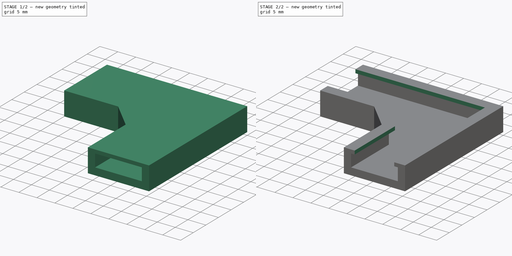
[diagram: build sequence overview — one tinted view per stage of 2, left to right]
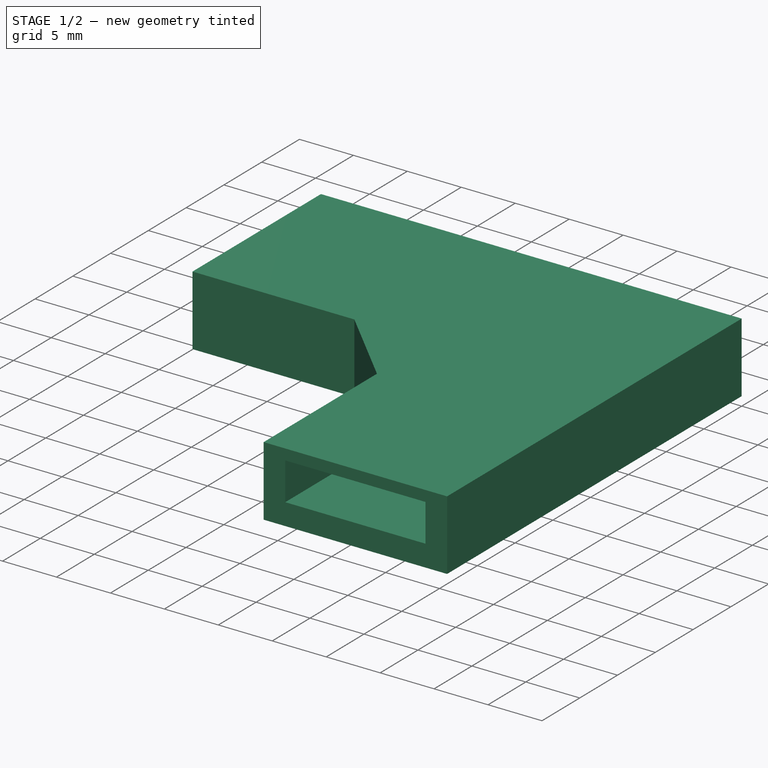
[diagram: stage 1 of 2 — iso view after this stage's code; geometry added in this stage tinted green]
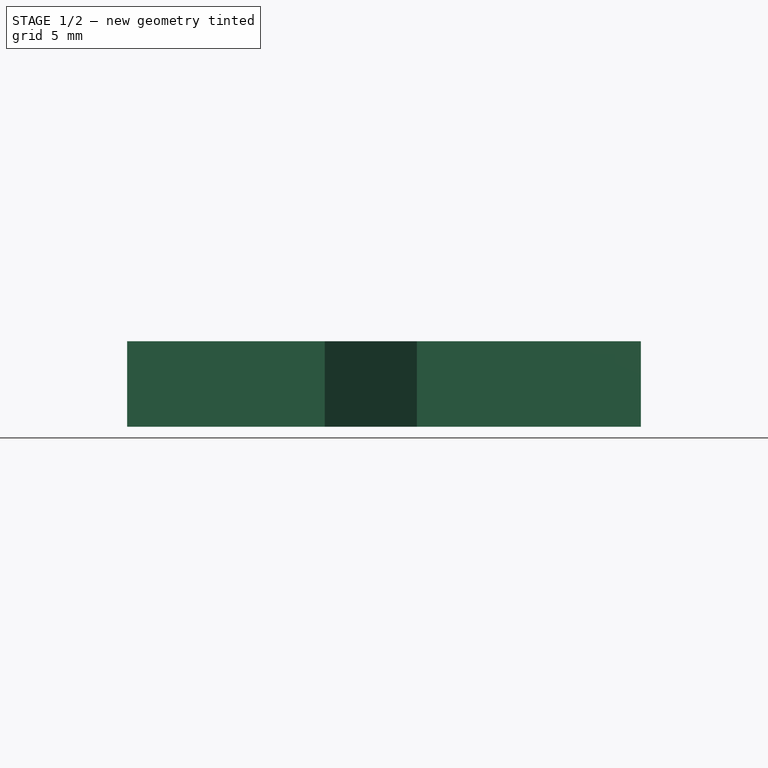
[diagram: stage 1 of 2 — front view after this stage's code; geometry added in this stage tinted green]
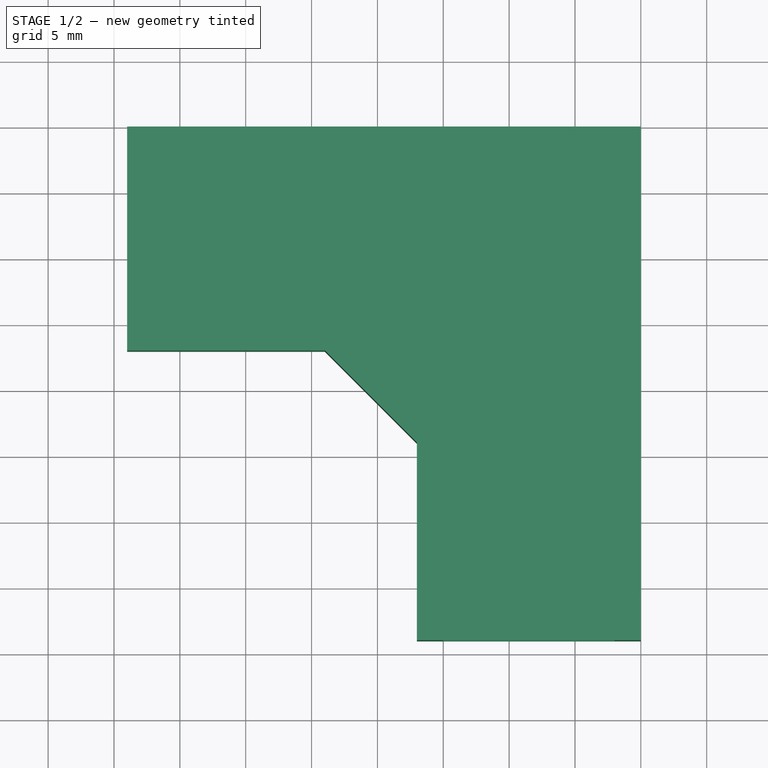
[diagram: stage 1 of 2 — top view after this stage's code; geometry added in this stage tinted green]
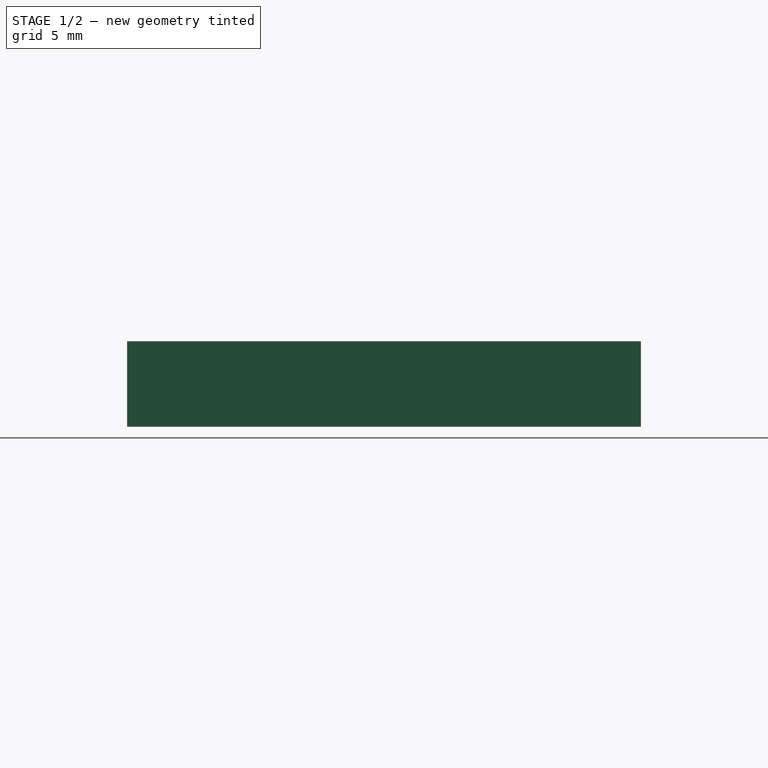
[diagram: stage 1 of 2 — right view after this stage's code; geometry added in this stage tinted green]
FCSTD DOCUMENT  (FreeCAD 0.20R29603 (Git))
Label: rozek
License: All rights reserved
LicenseURL: http://en.wikipedia.org/wiki/All_rights_reserved
objects: Sketcher::SketchObject×3, PartDesign::Pocket×2, App::Part×1, PartDesign::Pad×1, PartDesign::Body×1
note: 10 computed .brp shape members not serialized (recipe doc carries the construction recipe); baked Part::Feature solids carry a one-line shape summary decoded from their .brp

FEATURE [App::Part] Part
  Origin = -> Origin
  Placement = pos=(-2,-5,0) rot=(0,0,1;0rad)
FEATURE [Sketcher::SketchObject] Sketch
  FullyConstrained = true
  sketch-geometry (7):
    g0: LineSegment StartX=0 StartY=0 StartZ=0 EndX=0 EndY=-39 EndZ=0
    g1: LineSegment StartX=0 StartY=-39 StartZ=0 EndX=-17 EndY=-39 EndZ=0
    g2: LineSegment StartX=0 StartY=0 StartZ=0 EndX=-39 EndY=0 EndZ=0
    g3: LineSegment StartX=-39 StartY=0 StartZ=0 EndX=-39 EndY=-17 EndZ=0
    g4: LineSegment StartX=-24 StartY=-17 StartZ=0 EndX=-17 EndY=-24 EndZ=0
    g5: LineSegment StartX=-17 StartY=-39 StartZ=0 EndX=-17 EndY=-24 EndZ=0
    g6: LineSegment StartX=-24 StartY=-17 StartZ=0 EndX=-39 EndY=-17 EndZ=0
  constraints (20):
    c: Coincident(g0,g-1)
    c: PointOnObject(g0,g-2)
    c: Coincident(g1,g0)
    c: Horizontal(g1)
    c: Coincident(g2,g0)
    c: PointOnObject(g2,g-1)
    c: Coincident(g3,g2)
    c: Vertical(g3)
    c: DistanceX(g1,g1) = 17
    c: DistanceX(g2,g2) = 39
    c: DistanceY(g0,g0) = 39
    c: DistanceY(g3,g3) = 17
    c: Coincident(g5,g1)
    c: Coincident(g5,g4)
    c: Vertical(g5)
    c: Coincident(g6,g4)
    c: Coincident(g6,g3)
    c: Horizontal(g6)
    c: DistanceY(g5,g5) = 15
    c: DistanceX(g6,g6) = 15
FEATURE [PartDesign::Pad] Pad
  Direction = (0,0,1)
  Length = 6.5
  Length2 = 10
  Profile = -> Sketch
  ReferenceAxis = -> Sketch [N_Axis]
  Type = 0
FEATURE [Sketcher::SketchObject] Sketch001
  AttachmentOffset = pos=(0,0,2) rot=(0,0,1;0rad)
  FullyConstrained = true
  MapMode = 5
  Placement = pos=(0,0,2) rot=(0,0,1;0rad)
  Support = -> [XY_Plane001]
  sketch-geometry (7):
    g0: LineSegment StartX=-2 StartY=-39 StartZ=0 EndX=-15 EndY=-39 EndZ=0
    g1: LineSegment StartX=-15 StartY=-39 StartZ=0 EndX=-15 EndY=-24 EndZ=0
    g2: LineSegment StartX=-15 StartY=-24 StartZ=0 EndX=-24 EndY=-15 EndZ=0
    g3: LineSegment StartX=-24 StartY=-15 StartZ=0 EndX=-39 EndY=-15 EndZ=0
    g4: LineSegment StartX=-39 StartY=-15 StartZ=0 EndX=-39 EndY=-2 EndZ=0
    g5: LineSegment StartX=-39 StartY=-2 StartZ=0 EndX=-2 EndY=-2 EndZ=0
    g6: LineSegment StartX=-2 StartY=-2 StartZ=0 EndX=-2 EndY=-39 EndZ=0
  constraints (21):
    c: Horizontal(g0)
    c: Coincident(g1,g0)
    c: Vertical(g1)
    c: Coincident(g2,g1)
    c: Horizontal(g3)
    c: Coincident(g4,g3)
    c: Vertical(g4)
    c: Horizontal(g5)
    c: Coincident(g6,g5)
    c: Coincident(g6,g0)
    c: Vertical(g6)
    c: DistanceX(g0,g0) = 13
    c: Distance(g0,g-2) = 2
    c: Distance(g5,g-1) = 2
    c: DistanceY(g4,g4) = 13
    c: DistanceY(g1,g1) = 15
    c: DistanceX(g3,g3) = 15
    c: Coincident(g5,g4)
    c: Coincident(g2,g3)
    c: DistanceY(g6,g6) = 37
    c: DistanceX(g5,g5) = 37
FEATURE [PartDesign::Pocket] Pocket
  BaseFeature = -> Pad
  Direction = (0,0,1)
  Length = 3.5
  Length2 = 5
  Profile = -> Sketch001
  ReferenceAxis = -> Sketch001 [N_Axis]
  Type = 0
  UseCustomVector = true
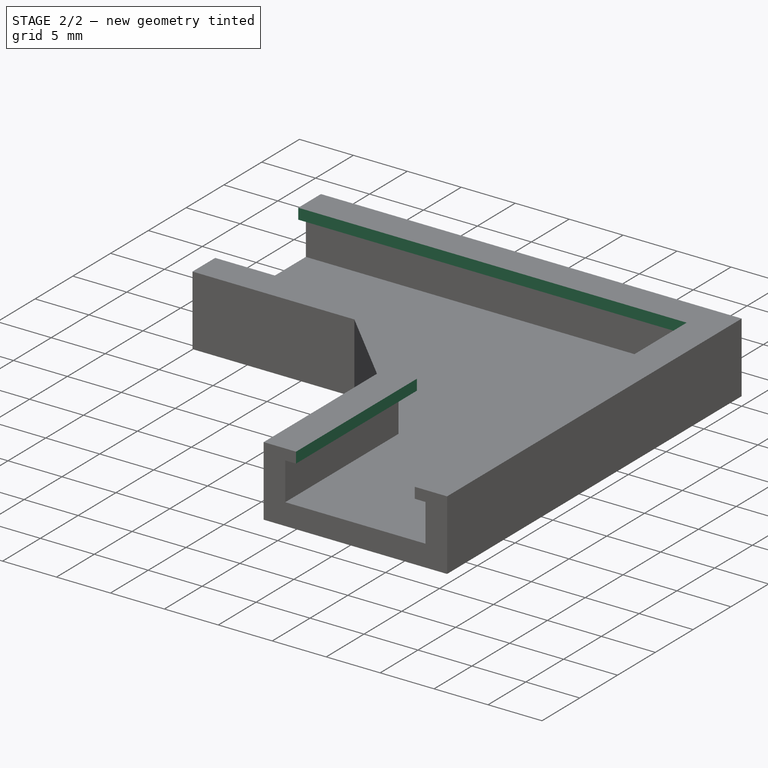
[diagram: stage 2 of 2 — iso view after this stage's code; geometry added in this stage tinted green]
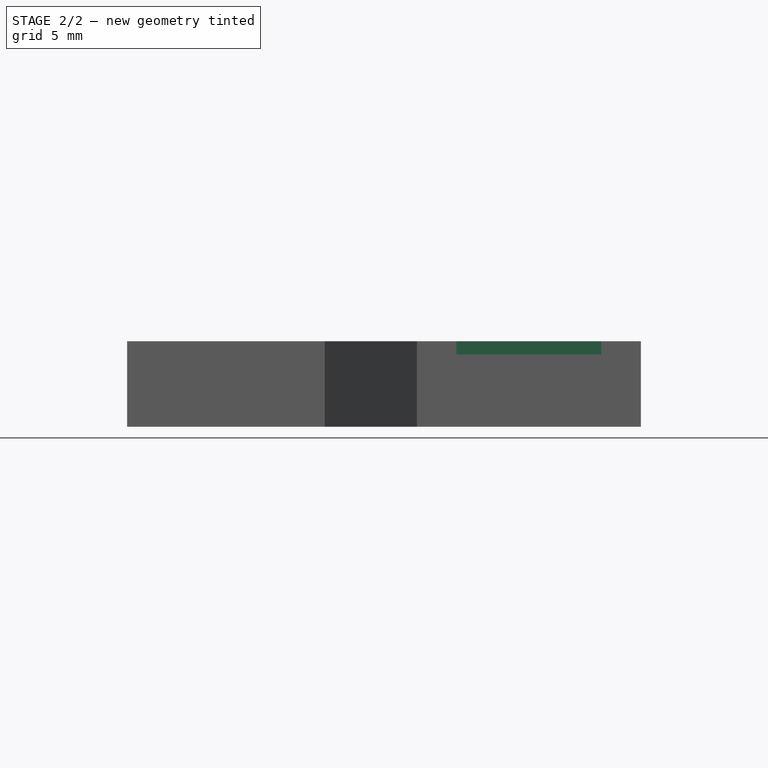
[diagram: stage 2 of 2 — front view after this stage's code; geometry added in this stage tinted green]
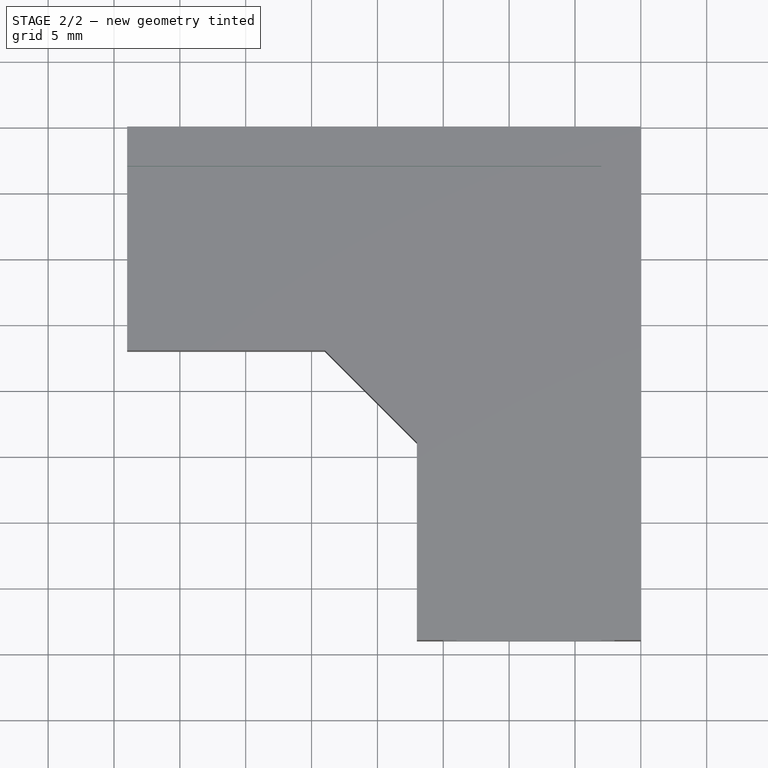
[diagram: stage 2 of 2 — top view after this stage's code; geometry added in this stage tinted green]
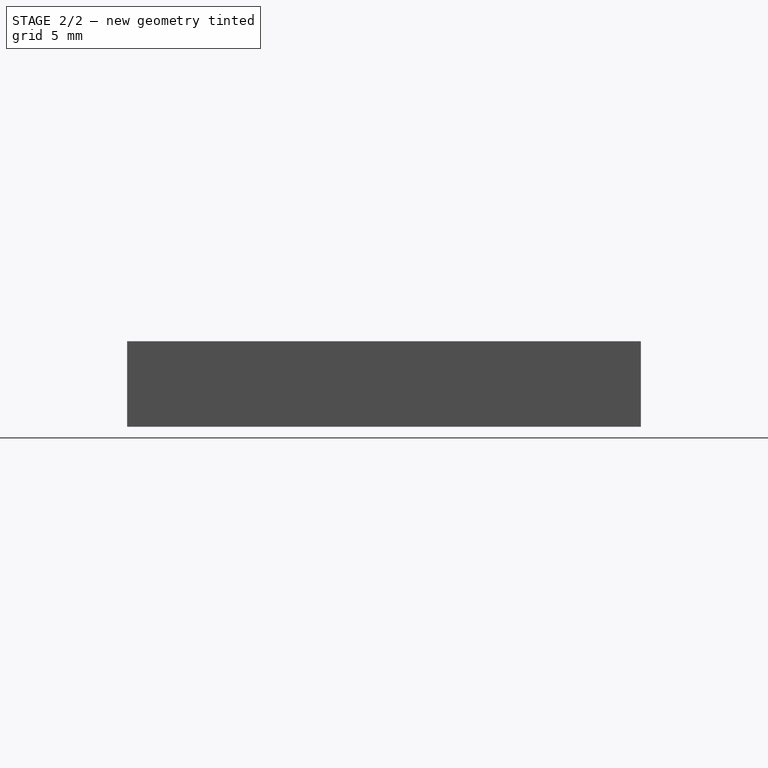
[diagram: stage 2 of 2 — right view after this stage's code; geometry added in this stage tinted green]
FEATURE [Sketcher::SketchObject] Sketch002
  AttachmentOffset = pos=(0,0,5.5) rot=(0,0,1;0rad)
  FullyConstrained = true
  MapMode = 5
  Placement = pos=(0,0,5.5) rot=(0,0,1;0rad)
  Support = -> [XY_Plane001]
  sketch-geometry (7):
    g0: LineSegment StartX=-3 StartY=-39 StartZ=0 EndX=-3 EndY=-3 EndZ=0
    g1: LineSegment StartX=-3 StartY=-3 StartZ=0 EndX=-39 EndY=-3 EndZ=0
    g2: LineSegment StartX=-39 StartY=-3 StartZ=0 EndX=-39 EndY=-14 EndZ=0
    g3: LineSegment StartX=-39 StartY=-14 StartZ=0 EndX=-23 EndY=-14 EndZ=0
    g4: LineSegment StartX=-23 StartY=-14 StartZ=0 EndX=-14 EndY=-23 EndZ=0
    g5: LineSegment StartX=-14 StartY=-23 StartZ=0 EndX=-14 EndY=-39 EndZ=0
    g6: LineSegment StartX=-14 StartY=-39 StartZ=0 EndX=-3 EndY=-39 EndZ=0
  constraints (21):
    c: Vertical(g0)
    c: Coincident(g1,g0)
    c: Horizontal(g1)
    c: Coincident(g2,g1)
    c: Vertical(g2)
    c: Coincident(g3,g2)
    c: Horizontal(g3)
    c: Coincident(g4,g3)
    c: Coincident(g5,g4)
    c: Vertical(g5)
    c: Coincident(g6,g5)
    c: Coincident(g6,g0)
    c: Horizontal(g6)
    c: Distance(g0,g-2) = 3
    c: Distance(g0,g-1) = 3
    c: DistanceX(g6,g6) = 11
    c: DistanceY(g2,g2) = 11
    c: DistanceX(g1,g1) = 36
    c: DistanceY(g0,g0) = 36
    c: DistanceX(g3,g3) = 16
    c: DistanceY(g5,g5) = 16
FEATURE [PartDesign::Pocket] Pocket001
  BaseFeature = -> Pocket
  Direction = (0,0,1)
  Length = 5
  Length2 = 5
  Profile = -> Sketch002
  ReferenceAxis = -> Sketch002 [N_Axis]
  Type = 0
  UseCustomVector = true
FEATURE [PartDesign::Body] Body
  Group = -> [Sketch,Pad,Sketch001,Pocket,Sketch002,Pocket001]
  Origin = -> Origin001
  Tip = -> Pocket001
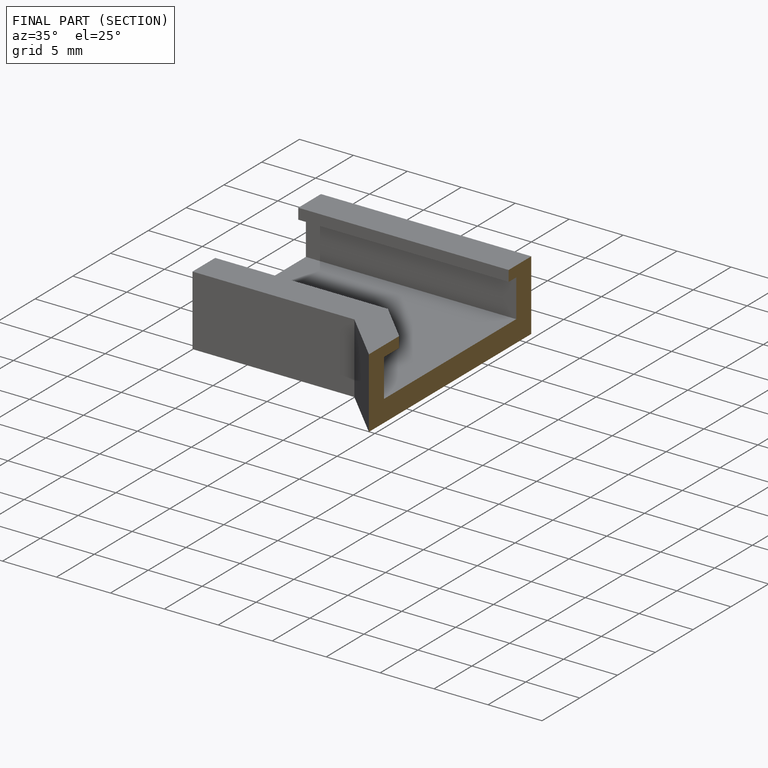
[diagram: finished part — half-section view (interior)]
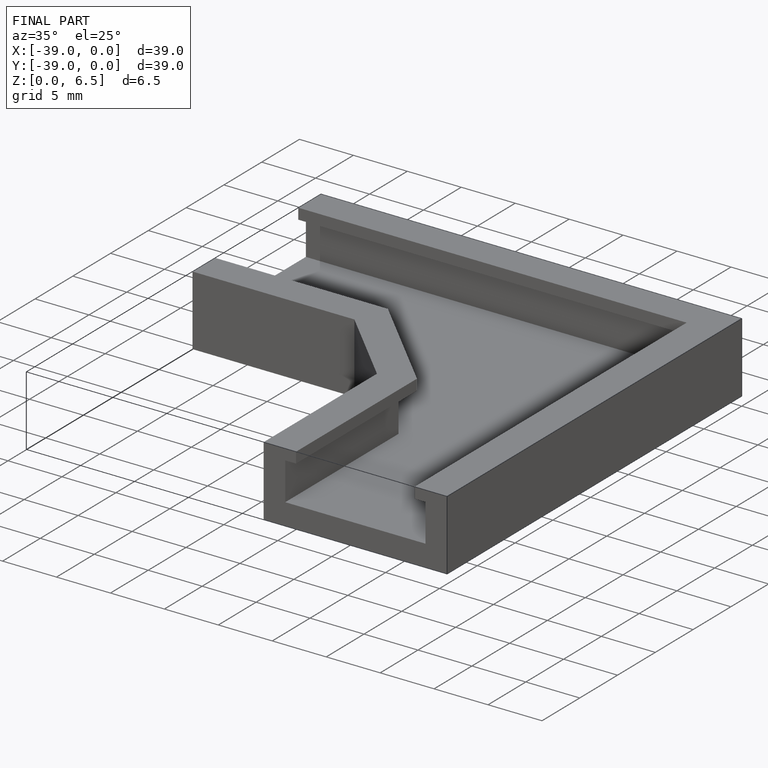
[diagram: finished part — iso view with bounding-box wireframe]
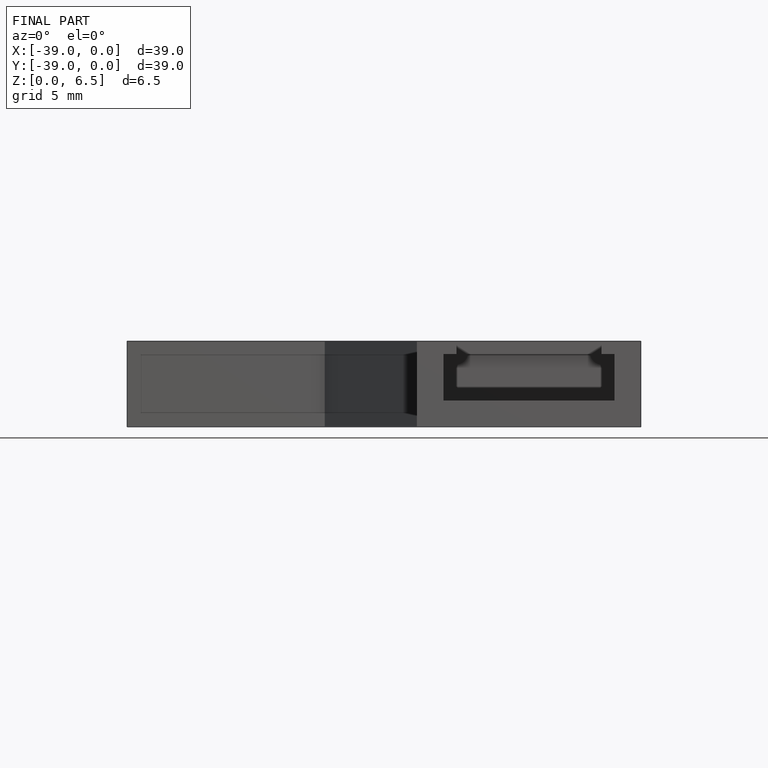
[diagram: finished part — front view with bounding-box wireframe]
